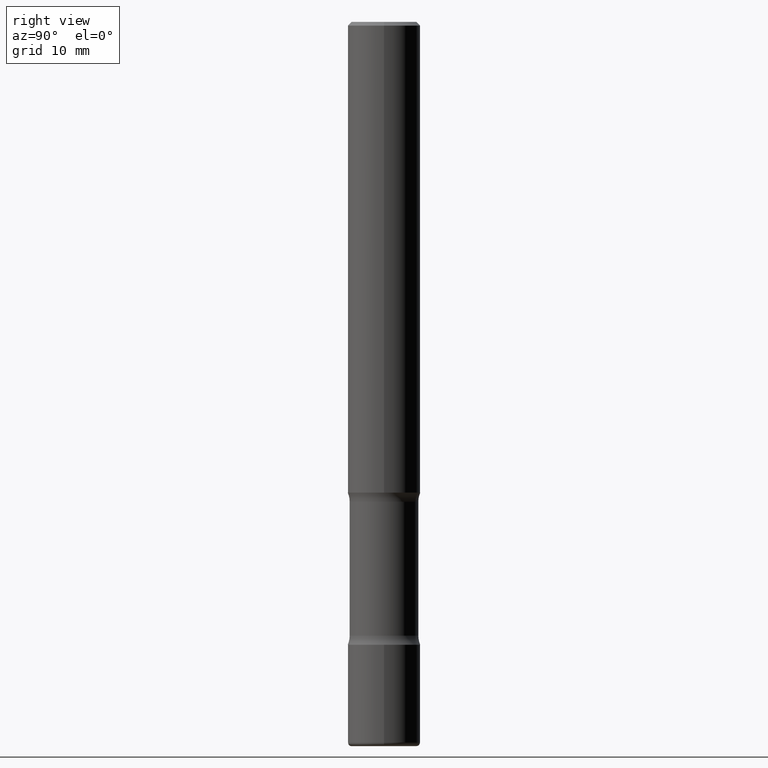
[diagram: clean part render]
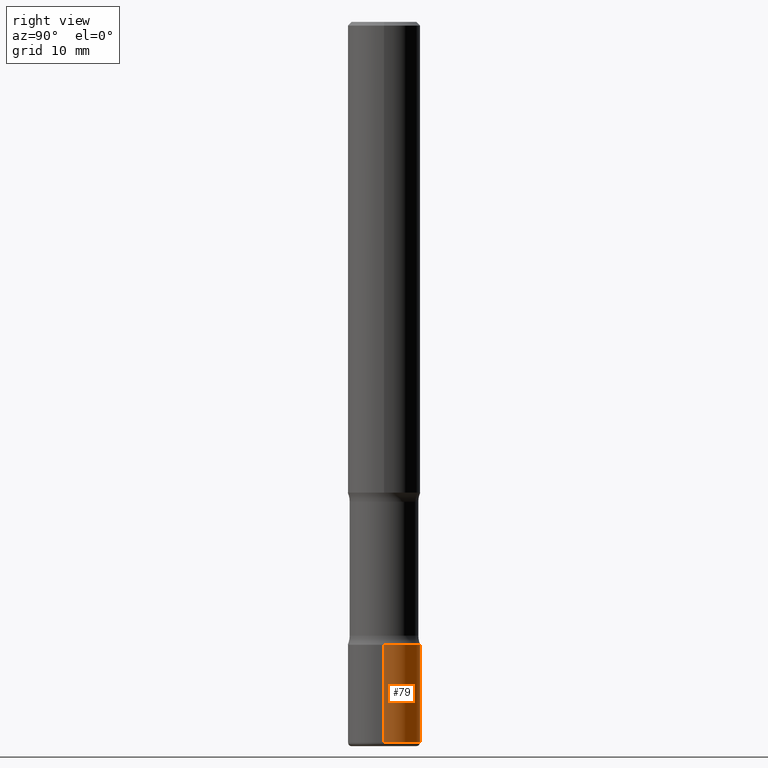
[diagram: same view with one face highlighted and labeled with its STEP entity id]
A machine part, right view. The second image highlights one B-rep face of the part: STEP entity #79.
In plain terms, the highlighted cylindrical surface (edge-blend (fillet) strip) has radius 5 mm, axis along (-0, 0, 1).
Its self-contained STEP definition (entity closure, byte-faithful):
#28 = DIRECTION ( 'NONE',  ( -2.445468806185136597E-29, 3.491481338843145583E-15, 1.000000000000000000 ) ) ;
#29 = ORIENTED_EDGE ( 'NONE', *, *, #294, .T. ) ;
#33 = VERTEX_POINT ( 'NONE', #434 ) ;
#47 = VERTEX_POINT ( 'NONE', #225 ) ;
#75 = DIRECTION ( 'NONE',  ( 1.000000000000000000, -6.982962677686272233E-15, 0.000000000000000000 ) ) ;
#79 = ADVANCED_FACE ( 'NONE', ( #231 ), #495, .T. ) ;
#101 = AXIS2_PLACEMENT_3D ( 'NONE', #441, #107, #191 ) ;
#107 = DIRECTION ( 'NONE',  ( -2.445468806185136597E-29, 3.491481338843145583E-15, 1.000000000000000000 ) ) ;
#113 = CARTESIAN_POINT ( 'NONE',  ( 9.579634954469036932E-29, -1.367717984865025539E-14, -3.917300000000000448 ) ) ;
#114 = VERTEX_POINT ( 'NONE', #529 ) ;
#127 = ORIENTED_EDGE ( 'NONE', *, *, #430, .F. ) ;
#168 = VERTEX_POINT ( 'NONE', #312 ) ;
#172 = ORIENTED_EDGE ( 'NONE', *, *, #391, .T. ) ;
#173 = EDGE_CURVE ( 'NONE', #168, #47, #493, .T. ) ;
#179 = DIRECTION ( 'NONE',  ( 1.000000000000000000, -6.982962677686265133E-15, 0.000000000000000000 ) ) ;
#191 = DIRECTION ( 'NONE',  ( 1.000000000000000000, -6.982962677686266711E-15, 4.876176775795935793E-29 ) ) ;
#210 = ORIENTED_EDGE ( 'NONE', *, *, #173, .F. ) ;
#215 = DIRECTION ( 'NONE',  ( -2.445468806185136877E-29, 3.491481338843145188E-15, 1.000000000000000000 ) ) ;
#219 = CARTESIAN_POINT ( 'NONE',  ( -0.1968500000000001360, 1.398703375343758182E-15, -9.682923725166790684E-30 ) ) ;
#225 = CARTESIAN_POINT ( 'NONE',  ( 0.1968500000000001082, -1.319605372015766376E-14, -3.385799999999999699 ) ) ;
#227 = AXIS2_PLACEMENT_3D ( 'NONE', #300, #549, #179 ) ;
#231 = FACE_OUTER_BOUND ( 'NONE', #436, .T. ) ;
#252 = AXIS2_PLACEMENT_3D ( 'NONE', #113, #28, #75 ) ;
#270 = CIRCLE ( 'NONE', #227, 0.1968500000000001082 ) ;
#272 = DIRECTION ( 'NONE',  ( -2.445468806185136877E-29, 3.491481338843145188E-15, 1.000000000000000000 ) ) ;
#294 = EDGE_CURVE ( 'NONE', #168, #114, #446, .T. ) ;
#300 = CARTESIAN_POINT ( 'NONE',  ( 8.279868283981634472E-29, -1.182145751705512057E-14, -3.385799999999999699 ) ) ;
#312 = CARTESIAN_POINT ( 'NONE',  ( 0.1968500000000001082, -1.505177605175279857E-14, -3.917300000000000448 ) ) ;
#391 = EDGE_CURVE ( 'NONE', #114, #33, #519, .T. ) ;
#405 = CARTESIAN_POINT ( 'NONE',  ( 0.1968500000000001360, -1.374596203102542594E-15, 9.598753983154306463E-30 ) ) ;
#430 = EDGE_CURVE ( 'NONE', #47, #33, #270, .T. ) ;
#434 = CARTESIAN_POINT ( 'NONE',  ( -0.1968500000000001082, -1.135061530750893177E-14, -3.385799999999999699 ) ) ;
#436 = EDGE_LOOP ( 'NONE', ( #29, #172, #127, #210 ) ) ;
#441 = CARTESIAN_POINT ( 'NONE',  ( 0.000000000000000000, 0.000000000000000000, 0.000000000000000000 ) ) ;
#446 = CIRCLE ( 'NONE', #252, 0.1968500000000001915 ) ;
#482 = VECTOR ( 'NONE', #272, 39.37007874015748143 ) ;
#493 = LINE ( 'NONE', #405, #482 ) ;
#495 = CYLINDRICAL_SURFACE ( 'NONE', #101, 0.1968500000000001360 ) ;
#519 = LINE ( 'NONE', #219, #560 ) ;
#529 = CARTESIAN_POINT ( 'NONE',  ( -0.1968500000000001082, -1.227847647330649839E-14, -3.917300000000000448 ) ) ;
#549 = DIRECTION ( 'NONE',  ( -2.445468806185136597E-29, 3.491481338843145583E-15, 1.000000000000000000 ) ) ;
#560 = VECTOR ( 'NONE', #215, 39.37007874015748143 ) ;